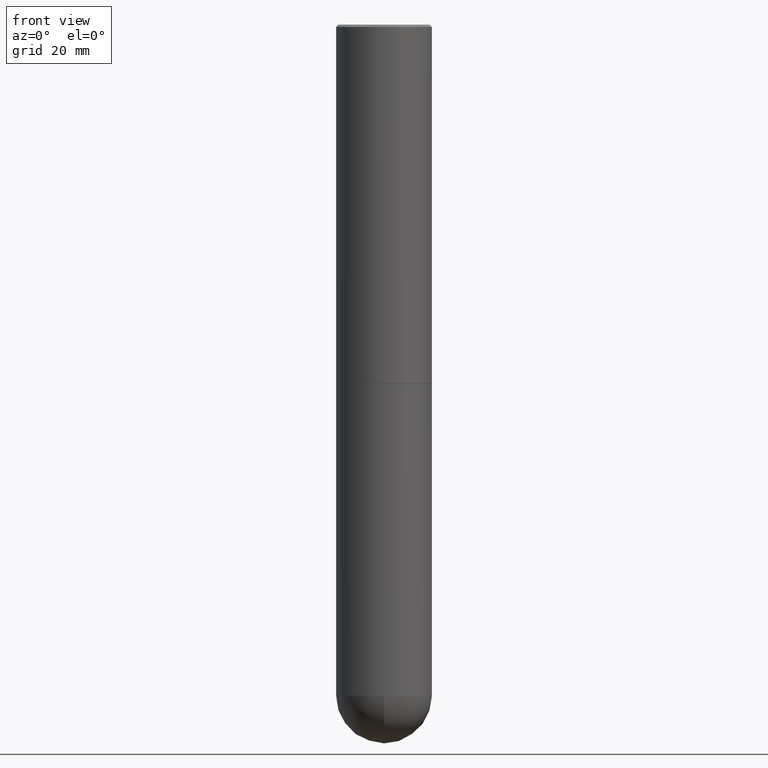
[diagram: clean part render]
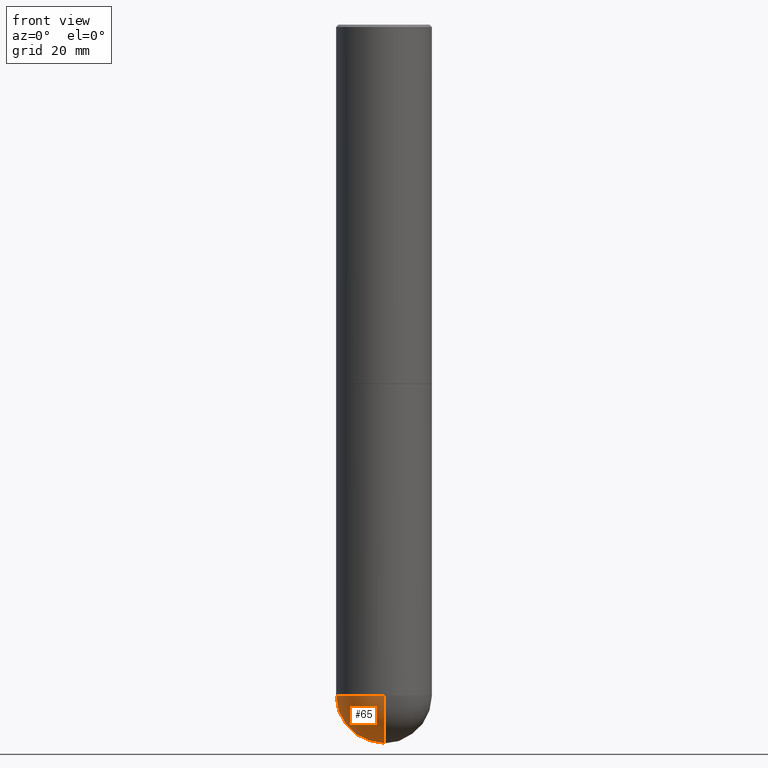
[diagram: same view with one face highlighted and labeled with its STEP entity id]
A machine part, front view. The second image highlights one B-rep face of the part: STEP entity #65.
In plain terms, the highlighted spherical surface has radius 10 mm.
Its self-contained STEP definition (entity closure, byte-faithful):
#38 = VERTEX_POINT ( 'NONE', #398 ) ;
#51 = EDGE_CURVE ( 'NONE', #38, #159, #219, .T. ) ;
#56 = EDGE_CURVE ( 'NONE', #38, #128, #199, .T. ) ;
#65 = ADVANCED_FACE ( 'NONE', ( #240 ), #204, .T. ) ;
#80 = DIRECTION ( 'NONE',  ( -1.000000000000000000, 6.982962677686265922E-15, -4.883557194083112340E-29 ) ) ;
#99 = VERTEX_POINT ( 'NONE', #276 ) ;
#101 = AXIS2_PLACEMENT_3D ( 'NONE', #178, #374, #310 ) ;
#118 = EDGE_CURVE ( 'NONE', #159, #99, #236, .T. ) ;
#128 = VERTEX_POINT ( 'NONE', #298 ) ;
#159 = VERTEX_POINT ( 'NONE', #306 ) ;
#165 = ORIENTED_EDGE ( 'NONE', *, *, #308, .F. ) ;
#178 = CARTESIAN_POINT ( 'NONE',  ( 1.314781518801735134E-28, -1.971852921157570065E-14, -5.511800000000000033 ) ) ;
#179 = CARTESIAN_POINT ( 'NONE',  ( 1.347893496593123646E-28, -1.924434684343564878E-14, -5.511800000000000033 ) ) ;
#199 = CIRCLE ( 'NONE', #101, 0.3937000000000001054 ) ;
#204 = SPHERICAL_SURFACE ( 'NONE', #408, 0.3937000000000001054 ) ;
#205 = DIRECTION ( 'NONE',  ( 6.982962677686265133E-15, 1.000000000000000000, 0.000000000000000000 ) ) ;
#219 = CIRCLE ( 'NONE', #391, 0.3937000000000001054 ) ;
#236 = CIRCLE ( 'NONE', #396, 0.3937000000000001054 ) ;
#239 = DIRECTION ( 'NONE',  ( 6.982962677686265922E-15, 1.000000000000000000, -2.775563112689116301E-15 ) ) ;
#240 = FACE_OUTER_BOUND ( 'NONE', #403, .T. ) ;
#245 = DIRECTION ( 'NONE',  ( 1.000000000000000000, -6.982962677686266711E-15, 0.000000000000000000 ) ) ;
#248 = DIRECTION ( 'NONE',  ( -2.445468806185136597E-29, 3.491481338843145583E-15, 1.000000000000000000 ) ) ;
#260 = AXIS2_PLACEMENT_3D ( 'NONE', #179, #248, #311 ) ;
#263 = ORIENTED_EDGE ( 'NONE', *, *, #51, .F. ) ;
#271 = CARTESIAN_POINT ( 'NONE',  ( 1.314781518801735134E-28, -1.971852921157570065E-14, -5.511800000000000033 ) ) ;
#276 = CARTESIAN_POINT ( 'NONE',  ( -0.3937000000000001054, -1.197941514563138553E-14, -5.511800000000000033 ) ) ;
#289 = ORIENTED_EDGE ( 'NONE', *, *, #118, .F. ) ;
#298 = CARTESIAN_POINT ( 'NONE',  ( -2.797406750687381075E-15, -0.3937000000000196454, -5.511799999999999145 ) ) ;
#306 = CARTESIAN_POINT ( 'NONE',  ( 2.749192406205216928E-15, 0.3936999999999805655, -5.511800000000000921 ) ) ;
#308 = EDGE_CURVE ( 'NONE', #99, #128, #337, .T. ) ;
#310 = DIRECTION ( 'NONE',  ( -7.105427357601001070E-15, -1.000000000000000000, 0.000000000000000000 ) ) ;
#311 = DIRECTION ( 'NONE',  ( 1.000000000000000000, -6.982962677686266711E-15, 0.000000000000000000 ) ) ;
#333 = DIRECTION ( 'NONE',  ( -2.445468806185136597E-29, 3.491481338843145583E-15, 1.000000000000000000 ) ) ;
#337 = CIRCLE ( 'NONE', #260, 0.3937000000000001054 ) ;
#338 = CARTESIAN_POINT ( 'NONE',  ( 1.314781518801735134E-28, -1.971852921157570065E-14, -5.511800000000000033 ) ) ;
#340 = DIRECTION ( 'NONE',  ( 1.000000000000000000, -6.982962677686265922E-15, 4.883557194083112340E-29 ) ) ;
#360 = ORIENTED_EDGE ( 'NONE', *, *, #56, .T. ) ;
#374 = DIRECTION ( 'NONE',  ( -1.000000000000000000, 7.105427357601001070E-15, -4.926315508542082329E-29 ) ) ;
#391 = AXIS2_PLACEMENT_3D ( 'NONE', #271, #340, #205 ) ;
#396 = AXIS2_PLACEMENT_3D ( 'NONE', #399, #333, #245 ) ;
#398 = CARTESIAN_POINT ( 'NONE',  ( 1.412743020541493694E-28, -2.106901824243703318E-14, -5.905499999999999972 ) ) ;
#399 = CARTESIAN_POINT ( 'NONE',  ( 1.347893496593123646E-28, -1.924434684343564878E-14, -5.511800000000000033 ) ) ;
#403 = EDGE_LOOP ( 'NONE', ( #263, #360, #165, #289 ) ) ;
#408 = AXIS2_PLACEMENT_3D ( 'NONE', #338, #80, #239 ) ;